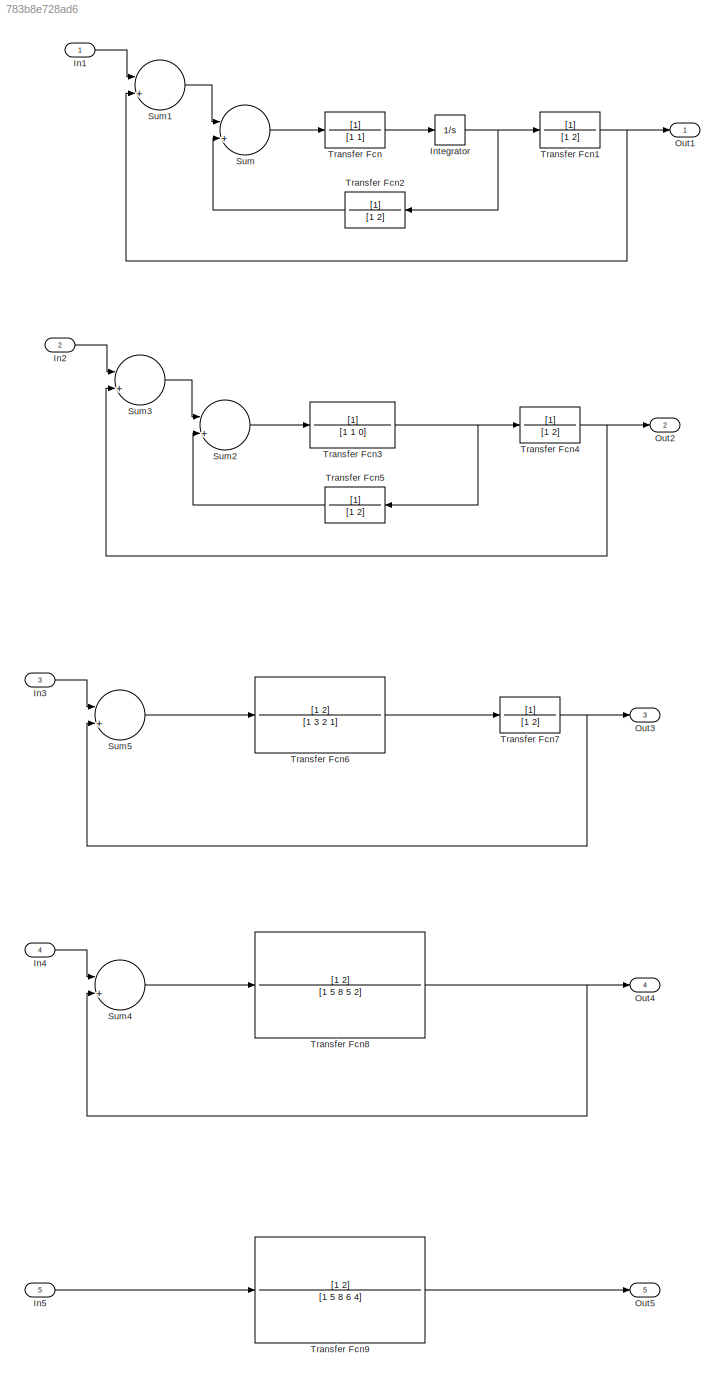
MODEL slx_783b8e728ad6
KIND model
CONFIG AbsTol = auto
CONFIG EnableMultiTasking = off
CONFIG FixedStep = auto
CONFIG MaxStep = auto
CONFIG MinStep = auto
CONFIG RelTol = 1e-3
CONFIG SampleTimeConstraint = Unconstrained
CONFIG Solver = VariableStepAuto
CONFIG SolverName = VariableStepAuto
CONFIG StartTime = 0.0
CONFIG StopTime = 10.0
BLOCK [Inport] In1
  IconDisplay = Port number
BLOCK [Inport] In2
  IconDisplay = Port number
  Port = 2
BLOCK [Inport] In3
  IconDisplay = Port number
  Port = 3
BLOCK [Inport] In4
  IconDisplay = Port number
  Port = 4
BLOCK [Inport] In5
  IconDisplay = Port number
  Port = 5
BLOCK [Integrator] Integrator
  Ports = [1, 1]
BLOCK [Outport] Out1
  IconDisplay = Port number
BLOCK [Outport] Out2
  IconDisplay = Port number
  Port = 2
BLOCK [Outport] Out3
  IconDisplay = Port number
  Port = 3
BLOCK [Outport] Out4
  IconDisplay = Port number
  Port = 4
BLOCK [Outport] Out5
  IconDisplay = Port number
  Port = 5
BLOCK [Sum] Sum
  IconShape = round
  InputSameDT = off
  Inputs = |+|-|
  OutDataTypeStr = Inherit: Inherit via internal rule
  Ports = [2, 1]
  SaturateOnIntegerOverflow = off
BLOCK [Sum] Sum1
  IconShape = round
  InputSameDT = off
  Inputs = |+|-|
  OutDataTypeStr = Inherit: Inherit via internal rule
  Ports = [2, 1]
  SaturateOnIntegerOverflow = off
BLOCK [Sum] Sum2
  IconShape = round
  InputSameDT = off
  Inputs = |+|-|
  OutDataTypeStr = Inherit: Inherit via internal rule
  Ports = [2, 1]
  SaturateOnIntegerOverflow = off
BLOCK [Sum] Sum3
  IconShape = round
  InputSameDT = off
  Inputs = |+|-|
  OutDataTypeStr = Inherit: Inherit via internal rule
  Ports = [2, 1]
  SaturateOnIntegerOverflow = off
BLOCK [Sum] Sum4
  IconShape = round
  InputSameDT = off
  Inputs = |+|-|
  OutDataTypeStr = Inherit: Inherit via internal rule
  Ports = [2, 1]
  SaturateOnIntegerOverflow = off
BLOCK [Sum] Sum5
  IconShape = round
  InputSameDT = off
  Inputs = |+|-|
  OutDataTypeStr = Inherit: Inherit via internal rule
  Ports = [2, 1]
  SaturateOnIntegerOverflow = off
BLOCK [TransferFcn] Transfer Fcn
  Denominator = [1 1]
BLOCK [TransferFcn] Transfer Fcn1
  Denominator = [1 2]
BLOCK [TransferFcn] Transfer Fcn2
  Denominator = [1 2]
BLOCK [TransferFcn] Transfer Fcn3
  Denominator = [1 1 0]
BLOCK [TransferFcn] Transfer Fcn4
  Denominator = [1 2]
BLOCK [TransferFcn] Transfer Fcn5
  Denominator = [1 2]
BLOCK [TransferFcn] Transfer Fcn6
  Denominator = [1 3 2 1]
  Numerator = [1 2]
BLOCK [TransferFcn] Transfer Fcn7
  Denominator = [1 2]
BLOCK [TransferFcn] Transfer Fcn8
  Denominator = [1 5 8 5 2]
  Numerator = [1 2]
BLOCK [TransferFcn] Transfer Fcn9
  Denominator = [1 5 8 6 4]
  Numerator = [1 2]
LINE In1:1 -> Sum1:1
LINE In2:1 -> Sum3:1
LINE In3:1 -> Sum5:1
LINE In4:1 -> Sum4:1
LINE In5:1 -> Transfer Fcn9:1
NET Integrator:1 -> Transfer Fcn1:1, Transfer Fcn2:1
LINE Sum1:1 -> Sum:1
LINE Sum2:1 -> Transfer Fcn3:1
LINE Sum3:1 -> Sum2:1
LINE Sum4:1 -> Transfer Fcn8:1
LINE Sum5:1 -> Transfer Fcn6:1
LINE Sum:1 -> Transfer Fcn:1
NET Transfer Fcn1:1 -> Out1:1, Sum1:2
LINE Transfer Fcn2:1 -> Sum:2
NET Transfer Fcn3:1 -> Transfer Fcn4:1, Transfer Fcn5:1
NET Transfer Fcn4:1 -> Out2:1, Sum3:2
LINE Transfer Fcn5:1 -> Sum2:2
LINE Transfer Fcn6:1 -> Transfer Fcn7:1
NET Transfer Fcn7:1 -> Out3:1, Sum5:2
NET Transfer Fcn8:1 -> Out4:1, Sum4:2
LINE Transfer Fcn9:1 -> Out5:1
LINE Transfer Fcn:1 -> Integrator:1
note: NET lines group one-source signal fan-out (src -> all destinations, sorted); 1:1 wires keep LINE
